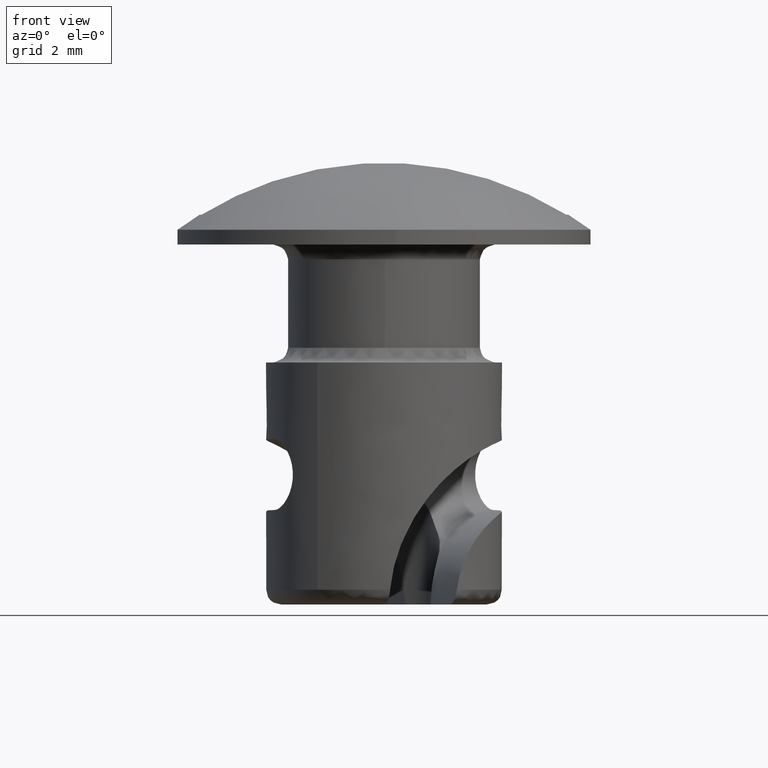
[diagram: clean part render]
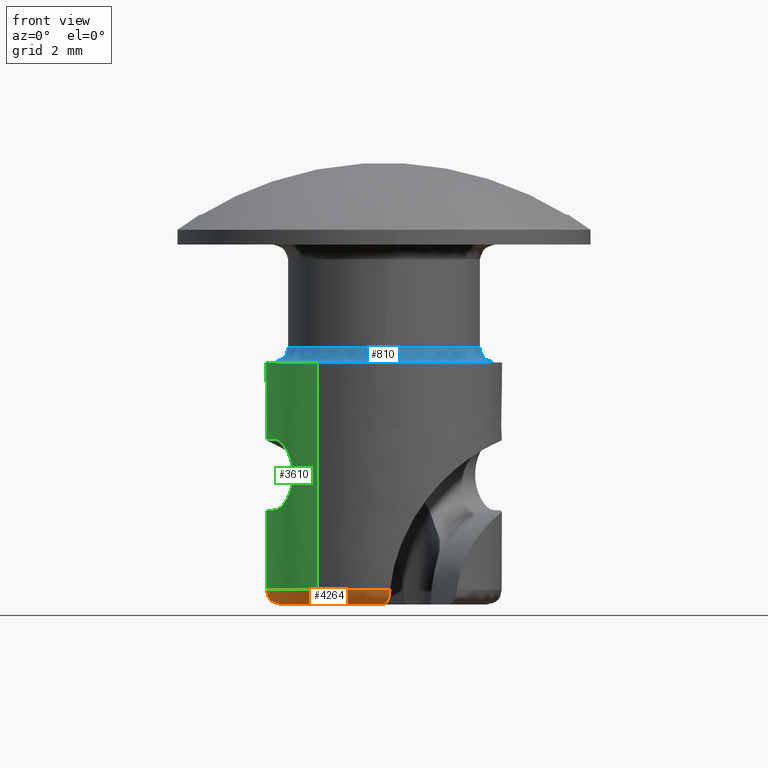
[diagram: same view with three faces highlighted in distinct colors, each labeled with its STEP entity id]
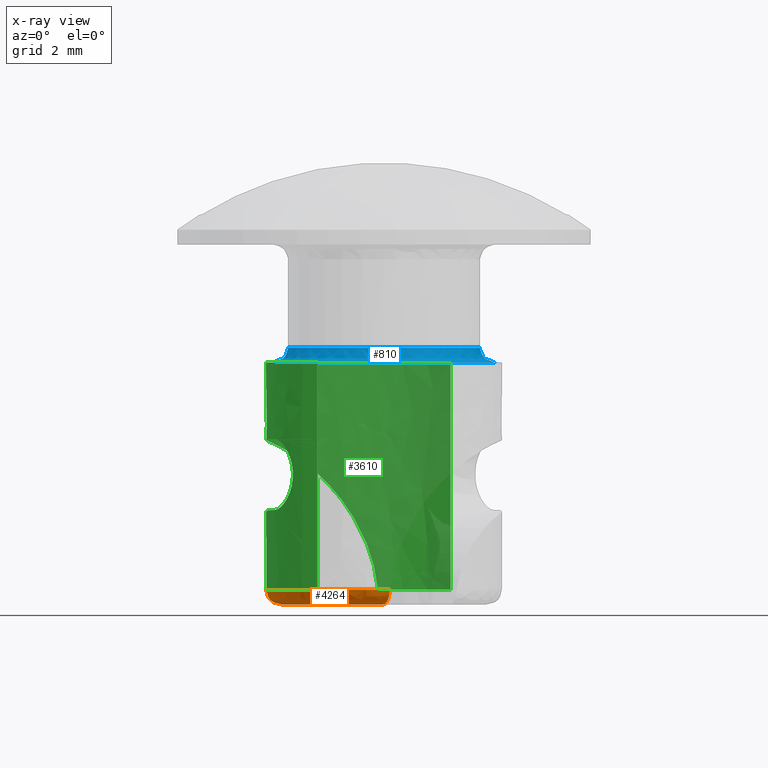
[diagram: x-ray of the same camera — body ghosted, the three highlighted faces saturated]
A machine part, front view with three faces highlighted in distinct colors.
The next image is the same camera in x-ray (body ghosted, the three faces saturated) — at least one of them is partly hidden behind the body in this view.
Their STEP definitions:

[orange] entity #4264 — the highlighted face is a freeform B-spline surface patch.
#3431=CARTESIAN_POINT('',(-2.259198889442652,-3.300912052439610,-11.699992000000160));
#3432=VERTEX_POINT('',#3431);
#3438=CARTESIAN_POINT('',(0.205768854712658,-3.994703891207740,-11.699992000000160));
#3439=VERTEX_POINT('',#3438);
#3440=CARTESIAN_POINT('',(-2.259198889442653,-3.300912052439611,-11.699992000000162));
#3441=CARTESIAN_POINT('',(-1.143920645850058,-4.064226957325293,-11.699992000000162));
#3442=CARTESIAN_POINT('',(0.205768854712658,-3.994703891207737,-11.699992000000160));
#3450=(BOUNDED_CURVE()B_SPLINE_CURVE(2,(#3440,#3441,#3442),.UNSPECIFIED.,.F.,.U.)B_SPLINE_CURVE_WITH_KNOTS((3,3),(0.742473770194558,1.0),.UNSPECIFIED.)CURVE()GEOMETRIC_REPRESENTATION_ITEM()RATIONAL_B_SPLINE_CURVE((0.903519857702811,0.900525176166710,1.0))REPRESENTATION_ITEM(''));
#3451=EDGE_CURVE('',#3432,#3439,#3450,.T.);
#3547=CARTESIAN_POINT('',(-2.468781606039290,3.147239644781135,-11.699992000000160));
#3548=VERTEX_POINT('',#3547);
#3592=CARTESIAN_POINT('',(-2.468781606039288,3.147239644781133,-11.699992000000160));
#3593=CARTESIAN_POINT('',(-4.772995447202776,1.339750737198706,-11.699992000000158));
#3594=CARTESIAN_POINT('',(-3.745950619800004,-1.402802179218427,-11.699992000000160));
#3595=CARTESIAN_POINT('',(-3.302552389255950,-2.586823633654807,-11.699992000000162));
#3596=CARTESIAN_POINT('',(-2.259198889442653,-3.300912052439611,-11.699992000000162));
#3604=(BOUNDED_CURVE()B_SPLINE_CURVE(2,(#3592,#3593,#3594,#3595,#3596),.UNSPECIFIED.,.F.,.U.)B_SPLINE_CURVE_WITH_KNOTS((3,2,3),(0.0,0.500000000000000,0.742473770194558),.UNSPECIFIED.)CURVE()GEOMETRIC_REPRESENTATION_ITEM()RATIONAL_B_SPLINE_CURVE((1.0,0.806864675671208,1.0,0.906339499504498,0.903519857702811))REPRESENTATION_ITEM(''));
#3605=EDGE_CURVE('',#3548,#3432,#3604,.T.);
#4123=CARTESIAN_POINT('',(-2.242511966324965,2.687217907221375,-12.199992000000099));
#4124=VERTEX_POINT('',#4123);
#4130=CARTESIAN_POINT('',(-2.468781606039290,3.147239644781135,-11.699992000000160));
#4131=CARTESIAN_POINT('',(-2.464572320773228,3.150541524273109,-11.733274123550190));
#4132=CARTESIAN_POINT('',(-2.459563125066526,3.150276408604841,-11.766187591314260));
#4133=CARTESIAN_POINT('',(-2.447905572098373,3.142738857981297,-11.831278994734751));
#4134=CARTESIAN_POINT('',(-2.441164767004551,3.135296757916409,-11.863783486413800));
#4135=CARTESIAN_POINT('',(-2.426427040251810,3.113930837520646,-11.925157461837310));
#4136=CARTESIAN_POINT('',(-2.418399638694786,3.100049556877730,-11.954308135837170));
#4137=CARTESIAN_POINT('',(-2.400786041455195,3.065982162877448,-12.009512428120050));
#4138=CARTESIAN_POINT('',(-2.391400104514497,3.046173255314443,-12.034889387884061));
#4139=CARTESIAN_POINT('',(-2.371574630902613,3.002094869464854,-12.080668314815309));
#4140=CARTESIAN_POINT('',(-2.360969432059830,2.977440976156993,-12.101381239037501));
#4141=CARTESIAN_POINT('',(-2.339057009752660,2.925254256444605,-12.136821845581650));
#4142=CARTESIAN_POINT('',(-2.327740431831670,2.897720641032076,-12.151663792608220));
#4143=CARTESIAN_POINT('',(-2.304196367126952,2.839942682373601,-12.175755940135289));
#4144=CARTESIAN_POINT('',(-2.292001899115876,2.809776261967374,-12.184892974169580));
#4145=CARTESIAN_POINT('',(-2.267516184016631,2.749146349777264,-12.196946027397439));
#4146=CARTESIAN_POINT('',(-2.255109725855921,2.718398469727004,-12.199992000000149));
#4147=CARTESIAN_POINT('',(-2.242511966324608,2.687217907221529,-12.199992000000160));
#4148=B_SPLINE_CURVE_WITH_KNOTS('',3,(#4130,#4131,#4132,#4133,#4134,#4135,#4136,#4137,#4138,#4139,#4140,#4141,#4142,#4143,#4144,#4145,#4146,#4147),.UNSPECIFIED.,.F.,.U.,(4,2,2,2,2,2,2,2,4),(0.0,0.125000000000000,0.250000000000000,0.375000000000000,0.500000000000000,0.625000000000000,0.750000000000000,0.875000000000000,1.0),.UNSPECIFIED.);
#4149=EDGE_CURVE('',#3548,#4124,#4148,.T.);
#4178=CARTESIAN_POINT('',(-0.017604006614064,-3.499955728141590,-12.199992000000099));
#4179=VERTEX_POINT('',#4178);
#4180=CARTESIAN_POINT('',(0.205768854712687,-3.994703891207736,-11.699992000000160));
#4181=CARTESIAN_POINT('',(0.202570867799463,-3.994868620840380,-11.734214420369421));
#4182=CARTESIAN_POINT('',(0.198393545772965,-3.991599343327962,-11.767742906660960));
#4183=CARTESIAN_POINT('',(0.188146193195389,-3.978574490013461,-11.833482946978870));
#4184=CARTESIAN_POINT('',(0.181987101593155,-3.968640287744275,-11.866043282467770));
#4185=CARTESIAN_POINT('',(0.168073989641811,-3.942908178400839,-11.927523380525161));
#4186=CARTESIAN_POINT('',(0.160334601070042,-3.927184040059273,-11.956536318944631));
#4187=CARTESIAN_POINT('',(0.147461496767844,-3.899415845364494,-11.997497215102010));
#4188=CARTESIAN_POINT('',(0.142933257884455,-3.889400476937641,-12.010782385685040));
#4189=CARTESIAN_POINT('',(0.133598651144906,-3.868340091526421,-12.035992227197690));
#4190=CARTESIAN_POINT('',(0.128782856804895,-3.857277266277471,-12.047958802780981));
#4191=CARTESIAN_POINT('',(0.113874842880179,-3.822554900096510,-12.082005095103829));
#4192=CARTESIAN_POINT('',(0.103303531045872,-3.797320421873493,-12.102282336880119));
#4193=CARTESIAN_POINT('',(0.080860798330045,-3.743011684126071,-12.137705294688450));
#4194=CARTESIAN_POINT('',(0.069289267673411,-3.714668037223075,-12.152391193458779));
#4195=CARTESIAN_POINT('',(0.045370677399293,-3.655796365253236,-12.176083282238160));
#4196=CARTESIAN_POINT('',(0.032901293881655,-3.624963587258385,-12.185131230430841));
#4197=CARTESIAN_POINT('',(0.007754761183584,-3.562736604437253,-12.197057158079900));
#4198=CARTESIAN_POINT('',(-0.004885637460380,-3.531434810067574,-12.199992000000240));
#4199=CARTESIAN_POINT('',(-0.017604006614226,-3.499955728141666,-12.199992000000240));
#4200=B_SPLINE_CURVE_WITH_KNOTS('',3,(#4180,#4181,#4182,#4183,#4184,#4185,#4186,#4187,#4188,#4189,#4190,#4191,#4192,#4193,#4194,#4195,#4196,#4197,#4198,#4199),.UNSPECIFIED.,.F.,.U.,(4,2,2,2,2,2,2,2,2,4),(0.0,0.124999999999997,0.249999999999995,0.374999999999992,0.437499999999991,0.499999999999989,0.624999999999992,0.749999999999995,0.874999999999997,1.0),.UNSPECIFIED.);
#4201=EDGE_CURVE('',#3439,#4179,#4200,.T.);
#4211=CARTESIAN_POINT('',(-1.787606860105116,2.968550239677458,-12.198781681150102));
#4212=CARTESIAN_POINT('',(-4.254964950566883,1.482752158886159,-12.198781681150100));
#4213=CARTESIAN_POINT('',(-3.245362096339542,-1.214682541006732,-12.198781681150102));
#4214=CARTESIAN_POINT('',(-2.238848449856915,-3.903863563593863,-12.198781681150100));
#4215=CARTESIAN_POINT('',(0.590520932782384,-3.414544455667517,-12.198781681150109));
#4216=CARTESIAN_POINT('',(-2.083477131882358,3.459880736219698,-12.238760598006138));
#4217=CARTESIAN_POINT('',(-4.959212436086616,1.728165338941946,-12.238760598006142));
#4218=CARTESIAN_POINT('',(-3.782508259116673,-1.415726999691343,-12.238760598006142));
#4219=CARTESIAN_POINT('',(-2.609404590645201,-4.549999578910936,-12.238760598006145));
#4220=CARTESIAN_POINT('',(0.688259195468510,-3.979692318231892,-12.238760598006142));
#4221=CARTESIAN_POINT('',(-2.062853240148691,3.425632121428938,-11.665223436331644));
#4222=CARTESIAN_POINT('',(-4.910122259477047,1.711058602178287,-11.665223436331647));
#4223=CARTESIAN_POINT('',(-3.745066023910930,-1.401713022806613,-11.665223436331644));
#4224=CARTESIAN_POINT('',(-2.583574656184543,-4.504960112305940,-11.665223436331646));
#4225=CARTESIAN_POINT('',(0.681446265816040,-3.940298200461869,-11.665223436331649));
#4233=(BOUNDED_SURFACE()B_SPLINE_SURFACE(2,2,((#4211,#4216,#4221),(#4212,#4217,#4222),(#4213,#4218,#4223),(#4214,#4219,#4224),(#4215,#4220,#4225)),.UNSPECIFIED.,.F.,.F.,.U.)B_SPLINE_SURFACE_WITH_KNOTS((3,2,3),(3,3),(0.0,5.779221311498259,11.544998977205591),(0.0,0.911186994557406),.UNSPECIFIED.)GEOMETRIC_REPRESENTATION_ITEM()RATIONAL_B_SPLINE_SURFACE(((0.897021274250015,0.588647735791374,0.897021262953132),(0.698343812921621,0.458270629784030,0.698343804126838),(0.919258316275454,0.603240237457421,0.919258304698524),(0.698857705048794,0.458607858616594,0.698857696247539),(0.896099216278844,0.588042658350538,0.896099204993574)))REPRESENTATION_ITEM('')SURFACE());
#4234=ORIENTED_EDGE('',*,*,#3451,.F.);
#4235=ORIENTED_EDGE('',*,*,#3605,.F.);
#4236=ORIENTED_EDGE('',*,*,#4149,.T.);
#4237=CARTESIAN_POINT('',(-0.017604006614064,-3.499955728141590,-12.199992000000099));
#4238=CARTESIAN_POINT('',(-0.156661396966879,-3.499260045613418,-12.199992000000099));
#4239=CARTESIAN_POINT('',(-0.440256766137130,-3.480901755320178,-12.199992000000110));
#4240=CARTESIAN_POINT('',(-0.845540601444326,-3.404553613646068,-12.199992000000179));
#4241=CARTESIAN_POINT('',(-1.244319776905004,-3.279873678761871,-12.199992000000140));
#4242=CARTESIAN_POINT('',(-1.676909219436891,-3.086796382280007,-12.199992000000231));
#4243=CARTESIAN_POINT('',(-2.119411065114881,-2.804644087866794,-12.199992000000099));
#4244=CARTESIAN_POINT('',(-2.501946451816288,-2.462470550342502,-12.199992000000369));
#4245=CARTESIAN_POINT('',(-2.780788435833931,-2.136434844309680,-12.199992000000000));
#4246=CARTESIAN_POINT('',(-3.023042282671148,-1.782562962652433,-12.199992000000400));
#4247=CARTESIAN_POINT('',(-3.224176240781139,-1.390428110235321,-12.199991999999970));
#4248=CARTESIAN_POINT('',(-3.376540124789555,-0.953670135058973,-12.199992000000201));
#4249=CARTESIAN_POINT('',(-3.477178462789413,-0.490837271421337,-12.199991999999940));
#4250=CARTESIAN_POINT('',(-3.510752783042816,-0.034448152891564,-12.199992000000920));
#4251=CARTESIAN_POINT('',(-3.477383437117761,0.499316412911414,-12.199991999999250));
#4252=CARTESIAN_POINT('',(-3.372458837554510,0.991034242136843,-12.199992000000440));
#4253=CARTESIAN_POINT('',(-3.203101216840307,1.427633091730290,-12.199992000000289));
#4254=CARTESIAN_POINT('',(-3.026655615721814,1.768837369115750,-12.199992000000110));
#4255=CARTESIAN_POINT('',(-2.747916640500233,2.199012333348569,-12.199992000000270));
#4256=CARTESIAN_POINT('',(-2.460373829471727,2.505510282566550,-12.199992000000201));
#4257=CARTESIAN_POINT('',(-2.242511966324965,2.687217907221375,-12.199992000000099));
#4258=B_SPLINE_CURVE_WITH_KNOTS('',3,(#4237,#4238,#4239,#4240,#4241,#4242,#4243,#4244,#4245,#4246,#4247,#4248,#4249,#4250,#4251,#4252,#4253,#4254,#4255,#4256,#4257),.UNSPECIFIED.,.F.,.U.,(4,1,1,1,1,1,1,1,1,1,1,1,1,1,1,1,1,1,4),(0.000000017907864,0.417177454176553,0.851055014053666,1.234865718255871,1.668742696379826,2.269490795805809,2.803490818404716,3.203992031990927,3.554424843338834,4.088427645423057,4.522284674150830,4.939474574679831,5.506847524780588,5.890660003630121,6.541472629562640,7.008723303767864,7.292410788534060,7.692911370398746,8.543963902825446),.UNSPECIFIED.);
#4259=EDGE_CURVE('',#4179,#4124,#4258,.T.);
#4260=ORIENTED_EDGE('',*,*,#4259,.F.);
#4261=ORIENTED_EDGE('',*,*,#4201,.F.);
#4262=EDGE_LOOP('',(#4234,#4235,#4236,#4260,#4261));
#4263=FACE_OUTER_BOUND('',#4262,.T.);
#4264=ADVANCED_FACE('',(#4263),#4233,.T.);

[blue] entity #810 — the highlighted face is a freeform B-spline surface patch.
#576=CARTESIAN_POINT('',(-3.249743393662270,0.040839629631426,-3.499992000029682));
#577=VERTEX_POINT('',#576);
#591=CARTESIAN_POINT('',(-3.250000000000000,0.0,-3.499992000000175));
#592=VERTEX_POINT('',#591);
#593=CARTESIAN_POINT('',(-3.249743393662269,0.040839629631426,-3.499992000029682));
#594=CARTESIAN_POINT('',(-3.250000000000000,0.020420620978907,-3.499992000014929));
#595=CARTESIAN_POINT('',(-3.250000000000000,0.0,-3.499992000000175));
#603=(BOUNDED_CURVE()B_SPLINE_CURVE(2,(#593,#594,#595),.UNSPECIFIED.,.F.,.U.)B_SPLINE_CURVE_WITH_KNOTS((3,3),(0.497784295921158,0.500000000000000),.UNSPECIFIED.)CURVE()GEOMETRIC_REPRESENTATION_ITEM()RATIONAL_B_SPLINE_CURVE((0.994854295642701,0.997404141201640,1.0))REPRESENTATION_ITEM(''));
#604=EDGE_CURVE('',#577,#592,#603,.T.);
#606=CARTESIAN_POINT('',(0.028359794209336,-3.249876262578363,-3.499992000015144));
#607=VERTEX_POINT('',#606);
#608=CARTESIAN_POINT('',(-3.250000000000000,0.0,-3.499992000000175));
#609=CARTESIAN_POINT('',(-3.250000000000001,-3.249999999999842,-3.499992000000265));
#610=CARTESIAN_POINT('',(-2.578229E-015,-3.249999999999679,-3.499992000015015));
#611=CARTESIAN_POINT('',(0.014180167045790,-3.249999999999678,-3.499992000015080));
#612=CARTESIAN_POINT('',(0.028359794209336,-3.249876262578364,-3.499992000015144));
#620=(BOUNDED_CURVE()B_SPLINE_CURVE(2,(#608,#609,#610,#611,#612),.UNSPECIFIED.,.F.,.U.)B_SPLINE_CURVE_WITH_KNOTS((3,2,3),(0.500000000000000,0.750000000000000,0.751539815953316),.UNSPECIFIED.)CURVE()GEOMETRIC_REPRESENTATION_ITEM()RATIONAL_B_SPLINE_CURVE((1.0,0.707106781186547,1.0,0.998195993396212,0.996414209497610))REPRESENTATION_ITEM(''));
#621=EDGE_CURVE('',#592,#607,#620,.T.);
#677=CARTESIAN_POINT('',(3.249743393662270,-0.040839629631425,-3.499992000029681));
#678=VERTEX_POINT('',#677);
#679=CARTESIAN_POINT('',(0.028359794209336,-3.249876262578364,-3.499992000015144));
#680=CARTESIAN_POINT('',(3.209764216664997,-3.222113982593769,-3.499992000029588));
#681=CARTESIAN_POINT('',(3.249743393662269,-0.040839629631425,-3.499992000029681));
#689=(BOUNDED_CURVE()B_SPLINE_CURVE(2,(#679,#680,#681),.UNSPECIFIED.,.F.,.U.)B_SPLINE_CURVE_WITH_KNOTS((3,3),(0.751539815953316,0.997784295921158),.UNSPECIFIED.)CURVE()GEOMETRIC_REPRESENTATION_ITEM()RATIONAL_B_SPLINE_CURVE((0.996414209497610,0.711474669430374,0.994854295642701))REPRESENTATION_ITEM(''));
#690=EDGE_CURVE('',#607,#678,#689,.T.);
#708=CARTESIAN_POINT('',(-3.250953615354651,0.040854838515779,-3.465223445443551));
#709=CARTESIAN_POINT('',(-3.291808453870429,-3.210098776838871,-3.465223445443552));
#710=CARTESIAN_POINT('',(-0.040854838515780,-3.250953615354651,-3.465223445443551));
#711=CARTESIAN_POINT('',(3.210098776838871,-3.291808453870432,-3.465223445443552));
#712=CARTESIAN_POINT('',(3.250953615354651,-0.040854838515780,-3.465223445443551));
#713=CARTESIAN_POINT('',(-3.210977882847664,0.040352462201208,-4.038760587009053));
#714=CARTESIAN_POINT('',(-3.251330345048872,-3.170625420646454,-4.038760587009052));
#715=CARTESIAN_POINT('',(-0.040352462201209,-3.210977882847664,-4.038760587009053));
#716=CARTESIAN_POINT('',(3.170625420646454,-3.251330345048872,-4.038760587009052));
#717=CARTESIAN_POINT('',(3.210977882847664,-0.040352462201209,-4.038760587009053));
#718=CARTESIAN_POINT('',(-3.784469739204387,0.047559552782540,-3.998781681766057));
#719=CARTESIAN_POINT('',(-3.832029291986928,-3.736910186421846,-3.998781681766058));
#720=CARTESIAN_POINT('',(-0.047559552782540,-3.784469739204387,-3.998781681766057));
#721=CARTESIAN_POINT('',(3.736910186421846,-3.832029291986928,-3.998781681766058));
#722=CARTESIAN_POINT('',(3.784469739204387,-0.047559552782541,-3.998781681766057));
#730=(BOUNDED_SURFACE()B_SPLINE_SURFACE(2,2,((#708,#713,#718),(#709,#714,#719),(#710,#715,#720),(#711,#716,#721),(#712,#717,#722)),.UNSPECIFIED.,.F.,.F.,.U.)B_SPLINE_SURFACE_WITH_KNOTS((3,2,3),(3,3),(0.0,6.270809886263397,12.541619772526790),(0.0,0.911186972831271),.UNSPECIFIED.)GEOMETRIC_REPRESENTATION_ITEM()RATIONAL_B_SPLINE_SURFACE(((0.910479795090997,0.597479572841838,0.910479806786608),(0.643806437242182,0.422481857576905,0.643806445512228),(0.910479795090997,0.597479572841838,0.910479806786608),(0.643806437242182,0.422481857576905,0.643806445512228),(0.910479795090997,0.597479572841838,0.910479806786608)))REPRESENTATION_ITEM('')SURFACE());
#731=CARTESIAN_POINT('',(-3.750000000000000,0.0,-3.999992000000205));
#732=VERTEX_POINT('',#731);
#733=CARTESIAN_POINT('',(-3.749703915248357,0.047122649624261,-3.999992000000190));
#734=VERTEX_POINT('',#733);
#735=CARTESIAN_POINT('',(-3.750000000000000,0.0,-3.999992000000205));
#736=CARTESIAN_POINT('',(-3.749999999742452,0.023562255000435,-3.999992000000198));
#737=CARTESIAN_POINT('',(-3.749703915248356,0.047122649624261,-3.999992000000190));
#745=(BOUNDED_CURVE()B_SPLINE_CURVE(2,(#735,#736,#737),.UNSPECIFIED.,.F.,.U.)B_SPLINE_CURVE_WITH_KNOTS((3,3),(0.500000000000000,0.502215704081469),.UNSPECIFIED.)CURVE()GEOMETRIC_REPRESENTATION_ITEM()RATIONAL_B_SPLINE_CURVE((1.0,0.997404141198562,0.994854295636654))REPRESENTATION_ITEM(''));
#746=EDGE_CURVE('',#732,#734,#745,.T.);
#747=ORIENTED_EDGE('',*,*,#746,.F.);
#748=CARTESIAN_POINT('',(3.749703915248357,-0.047122649624261,-3.999992000000175));
#749=VERTEX_POINT('',#748);
#750=CARTESIAN_POINT('',(3.749703915248357,-0.047122649624261,-3.999992000000175));
#751=CARTESIAN_POINT('',(3.747692243962044,-0.207532549941390,-3.999992000000179));
#752=CARTESIAN_POINT('',(3.721281962844098,-0.550991280395473,-3.999992000000171));
#753=CARTESIAN_POINT('',(3.604041005647385,-1.089889313004736,-3.999992000000218));
#754=CARTESIAN_POINT('',(3.387790867123681,-1.647304414464119,-3.999992000000125));
#755=CARTESIAN_POINT('',(3.079004083451685,-2.168218418047433,-3.999992000000293));
#756=CARTESIAN_POINT('',(2.686972144175171,-2.639376201425642,-3.999992000000025));
#757=CARTESIAN_POINT('',(2.270080389028266,-3.001246220213727,-3.999992000000301));
#758=CARTESIAN_POINT('',(1.864525800322066,-3.261882883429304,-3.999992000000127));
#759=CARTESIAN_POINT('',(1.481558131621359,-3.453678741363479,-3.999992000000203));
#760=CARTESIAN_POINT('',(1.086241139929066,-3.598535615152493,-3.999992000000195));
#761=CARTESIAN_POINT('',(0.684168899137651,-3.693545747917341,-3.999992000000207));
#762=CARTESIAN_POINT('',(0.259608568193752,-3.749586295492530,-3.999992000000203));
#763=CARTESIAN_POINT('',(-0.176848918702472,-3.756178202687441,-3.999992000000207));
#764=CARTESIAN_POINT('',(-0.693856039809802,-3.697387748418087,-3.999992000000205));
#765=CARTESIAN_POINT('',(-1.265493653762731,-3.551005272313260,-3.999992000000206));
#766=CARTESIAN_POINT('',(-1.824175047538319,-3.296150164202622,-3.999992000000204));
#767=CARTESIAN_POINT('',(-2.294022207715006,-2.979502800560073,-3.999992000000205));
#768=CARTESIAN_POINT('',(-2.621613442748406,-2.691411142214324,-3.999992000000202));
#769=CARTESIAN_POINT('',(-2.962906422298065,-2.319568754656141,-3.999992000000210));
#770=CARTESIAN_POINT('',(-3.249687033661092,-1.902138058682559,-3.999992000000201));
#771=CARTESIAN_POINT('',(-3.497348873247582,-1.384294001408534,-3.999992000000203));
#772=CARTESIAN_POINT('',(-3.645334319453397,-0.924980011380784,-3.999992000000205));
#773=CARTESIAN_POINT('',(-3.731766310221203,-0.450708986480115,-3.999992000000203));
#774=CARTESIAN_POINT('',(-3.750004755178723,-0.152783584593169,-3.999992000000207));
#775=CARTESIAN_POINT('',(-3.750000000000000,0.0,-3.999992000000205));
#776=B_SPLINE_CURVE_WITH_KNOTS('',3,(#750,#751,#752,#753,#754,#755,#756,#757,#758,#759,#760,#761,#762,#763,#764,#765,#766,#767,#768,#769,#770,#771,#772,#773,#774,#775),.UNSPECIFIED.,.F.,.U.,(4,1,1,1,1,1,1,1,1,1,1,1,1,1,1,1,1,1,1,1,1,1,1,4),(0.000000021437945,0.481268429929072,1.031292887368121,1.650072485586046,2.268853387291683,2.841796062553922,3.483492875315552,3.918933511557905,4.285612166466626,4.766891789918317,5.179403761802127,5.523175956074534,6.050271183722716,6.485701721799428,7.081564013445127,7.814937288409130,8.319126123765287,8.777482577953810,9.121249274211788,9.831702170875873,10.290054036674920,10.840085076701831,11.275515986907619,11.733866820730469),.UNSPECIFIED.);
#777=EDGE_CURVE('',#749,#732,#776,.T.);
#778=ORIENTED_EDGE('',*,*,#777,.F.);
#779=CARTESIAN_POINT('',(3.249743393662269,-0.040839629631425,-3.499992000029681));
#780=CARTESIAN_POINT('',(3.249743393691411,-0.040839629660613,-3.999991999485038));
#781=CARTESIAN_POINT('',(3.749703915248358,-0.047122649624261,-3.999992000000175));
#789=(BOUNDED_CURVE()B_SPLINE_CURVE(2,(#779,#780,#781),.UNSPECIFIED.,.F.,.U.)B_SPLINE_CURVE_WITH_KNOTS((3,3),(-1.725134643221297,-0.274865357774724),.UNSPECIFIED.)CURVE()GEOMETRIC_REPRESENTATION_ITEM()RATIONAL_B_SPLINE_CURVE((0.883342149631467,0.624617224326861,0.883342149276091))REPRESENTATION_ITEM(''));
#790=EDGE_CURVE('',#678,#749,#789,.T.);
#791=ORIENTED_EDGE('',*,*,#790,.F.);
#792=ORIENTED_EDGE('',*,*,#690,.F.);
#793=ORIENTED_EDGE('',*,*,#621,.F.);
#794=ORIENTED_EDGE('',*,*,#604,.F.);
#795=CARTESIAN_POINT('',(-3.249743393662270,0.040839629631426,-3.499992000029682));
#796=CARTESIAN_POINT('',(-3.249743393691412,0.040839629660613,-3.999991999485046));
#797=CARTESIAN_POINT('',(-3.749703915248357,0.047122649624261,-3.999992000000190));
#805=(BOUNDED_CURVE()B_SPLINE_CURVE(2,(#795,#796,#797),.UNSPECIFIED.,.F.,.U.)B_SPLINE_CURVE_WITH_KNOTS((3,3),(-1.725134643221296,-0.274865357774725),.UNSPECIFIED.)CURVE()GEOMETRIC_REPRESENTATION_ITEM()RATIONAL_B_SPLINE_CURVE((0.883342149631467,0.624617224326861,0.883342149276091))REPRESENTATION_ITEM(''));
#806=EDGE_CURVE('',#577,#734,#805,.T.);
#807=ORIENTED_EDGE('',*,*,#806,.T.);
#808=EDGE_LOOP('',(#747,#778,#791,#792,#793,#794,#807));
#809=FACE_OUTER_BOUND('',#808,.T.);
#810=ADVANCED_FACE('',(#809),#730,.F.);

[green] entity #3610 — the highlighted face is a freeform B-spline surface patch.
#893=CARTESIAN_POINT('',(2.259197510015699,3.300912996541445,-3.999992000000230));
#894=VERTEX_POINT('',#893);
#908=CARTESIAN_POINT('',(-4.0,0.0,-3.999992000000230));
#909=VERTEX_POINT('',#908);
#910=CARTESIAN_POINT('',(2.259197510015699,3.300912996541445,-3.999992000000230));
#911=CARTESIAN_POINT('',(1.237761639447398,3.999999999999750,-3.999992000000230));
#912=CARTESIAN_POINT('',(-1.424406E-013,3.999999999999792,-3.999992000000229));
#913=CARTESIAN_POINT('',(-4.000000000000049,3.999999999999929,-3.999992000000229));
#914=CARTESIAN_POINT('',(-4.0,0.0,-3.999992000000230));
#922=(BOUNDED_CURVE()B_SPLINE_CURVE(2,(#910,#911,#912,#913,#914),.UNSPECIFIED.,.F.,.U.)B_SPLINE_CURVE_WITH_KNOTS((3,2,3),(0.153025893260789,0.250000000000000,0.500000000000000),.UNSPECIFIED.)CURVE()GEOMETRIC_REPRESENTATION_ITEM()RATIONAL_B_SPLINE_CURVE((0.860915092408029,0.886387766942373,1.0,0.707106781186548,1.0))REPRESENTATION_ITEM(''));
#923=EDGE_CURVE('',#894,#909,#922,.T.);
#925=CARTESIAN_POINT('',(-2.259197510500350,-3.300912996209743,-3.999992000000230));
#926=VERTEX_POINT('',#925);
#927=CARTESIAN_POINT('',(-4.0,0.0,-3.999992000000230));
#928=CARTESIAN_POINT('',(-3.999999999999907,-2.109480003257371,-3.999992000000230));
#929=CARTESIAN_POINT('',(-2.259197510500349,-3.300912996209743,-3.999992000000230));
#937=(BOUNDED_CURVE()B_SPLINE_CURVE(2,(#927,#928,#929),.UNSPECIFIED.,.F.,.U.)B_SPLINE_CURVE_WITH_KNOTS((3,3),(0.500000000000000,0.653025893238444),.UNSPECIFIED.)CURVE()GEOMETRIC_REPRESENTATION_ITEM()RATIONAL_B_SPLINE_CURVE((1.0,0.820719014270353,0.860915092396290))REPRESENTATION_ITEM(''));
#938=EDGE_CURVE('',#909,#926,#937,.T.);
#1165=CARTESIAN_POINT('',(-3.708735643717875,-1.498425815653404,-6.600000000000000));
#1166=VERTEX_POINT('',#1165);
#1591=CARTESIAN_POINT('',(-3.708735643717195,-1.498425815655100,-9.0));
#1592=VERTEX_POINT('',#1591);
#1813=CARTESIAN_POINT('',(-0.205768854712658,3.994703891207740,-11.699992000000160));
#1814=VERTEX_POINT('',#1813);
#1815=CARTESIAN_POINT('',(-3.708735643717875,-1.498425815653404,-6.600000000000000));
#1816=CARTESIAN_POINT('',(-3.789816242015302,-1.297744205807735,-6.599999999999972));
#1817=CARTESIAN_POINT('',(-3.853610974872032,-1.093263577412488,-6.600772875729547));
#1818=CARTESIAN_POINT('',(-3.948059474699817,-0.677029674079291,-6.604736595366663));
#1819=CARTESIAN_POINT('',(-3.978711172169415,-0.465275843627494,-6.607918917681143));
#1820=CARTESIAN_POINT('',(-3.995564957132693,-0.195894578718415,-6.615217662911021));
#1821=CARTESIAN_POINT('',(-3.997848564085063,-0.141795779559010,-6.616849857873357));
#1822=CARTESIAN_POINT('',(-4.000216753743071,-0.034133671513432,-6.620487619688186));
#1823=CARTESIAN_POINT('',(-4.000310720402404,0.019555583718766,-6.622496360478703));
#1824=CARTESIAN_POINT('',(-3.997374375231632,0.180197743397611,-6.629181404475866));
#1825=CARTESIAN_POINT('',(-3.991130562209951,0.286725832207316,-6.634513265878185));
#1826=CARTESIAN_POINT('',(-3.959775703180690,0.604579068728949,-6.653959452422089));
#1827=CARTESIAN_POINT('',(-3.922112906822729,0.814186815777882,-6.671451332132993));
#1828=CARTESIAN_POINT('',(-3.853761044358152,1.073029672022521,-6.702641931695323));
#1829=CARTESIAN_POINT('',(-3.838978122430331,1.124771750286358,-6.709371911327247));
#1830=CARTESIAN_POINT('',(-3.807509609817084,1.227083976707175,-6.723770845920252));
#1831=CARTESIAN_POINT('',(-3.757456182568842,1.378856449089958,-6.746776668644611));
#1832=CARTESIAN_POINT('',(-3.699122988859857,1.525589463259218,-6.774337358302793));
#1833=CARTESIAN_POINT('',(-3.571982284881070,1.812368324864488,-6.836501287930684));
#1834=CARTESIAN_POINT('',(-3.473289894623776,1.994666556306956,-6.887282724575035));
#1835=CARTESIAN_POINT('',(-3.333735905731934,2.211076038045203,-6.966273291350480));
#1836=CARTESIAN_POINT('',(-3.304936856167118,2.253889410775153,-6.982896306513404));
#1837=CARTESIAN_POINT('',(-3.246122206245276,2.337801471763046,-7.017586295371046));
#1838=CARTESIAN_POINT('',(-3.156252307149328,2.460874529570282,-7.071677189101810));
#1839=CARTESIAN_POINT('',(-3.061826482051081,2.575801728123305,-7.132117061349231));
#1840=CARTESIAN_POINT('',(-2.867818098297072,2.795310921927874,-7.261970828628705));
#1841=CARTESIAN_POINT('',(-2.731615405252651,2.927880516877459,-7.360484840940162));
#1842=CARTESIAN_POINT('',(-2.555468277276900,3.077615931860112,-7.500482646460062));
#1843=CARTESIAN_POINT('',(-2.519980797999551,3.106724907485755,-7.529300169703665));
#1844=CARTESIAN_POINT('',(-2.449137228549458,3.162873647304285,-7.588113109815472));
#1845=CARTESIAN_POINT('',(-2.342830668632972,3.244196303757055,-7.678286934049607));
#1846=CARTESIAN_POINT('',(-2.236691472767791,3.317262990057822,-7.774323978974890));
#1847=CARTESIAN_POINT('',(-2.095796109974274,3.408028925196530,-7.907615685544692));
#1848=CARTESIAN_POINT('',(-2.025659446669301,3.450082715466894,-7.976882592651817));
#1849=CARTESIAN_POINT('',(-1.921257087853518,3.508612679782934,-8.084763703480403));
#1850=CARTESIAN_POINT('',(-1.886589940101576,3.527363601466302,-8.121387812844379));
#1851=CARTESIAN_POINT('',(-1.817578161753506,3.563414823586853,-8.195975244005737));
#1852=CARTESIAN_POINT('',(-1.783169554541134,3.580745444036076,-8.234012034142026));
#1853=CARTESIAN_POINT('',(-1.613033766418871,3.663472067865985,-8.426479837185488));
#1854=CARTESIAN_POINT('',(-1.482986987825050,3.717243031302735,-8.587707480761205));
#1855=CARTESIAN_POINT('',(-1.236698357886628,3.806274206021904,-8.924298447189081));
#1856=CARTESIAN_POINT('',(-1.120446684108451,3.841502833200431,-9.099662647876054));
#1857=CARTESIAN_POINT('',(-0.957908198356718,3.884011853853578,-9.373477761067985));
#1858=CARTESIAN_POINT('',(-0.905705251657002,3.896450403323479,-9.466548770707387));
#1859=CARTESIAN_POINT('',(-0.805555123776748,3.918380876203309,-9.656374165562108));
#1860=CARTESIAN_POINT('',(-0.757944234396752,3.927799075888549,-9.752505848182304));
#1861=CARTESIAN_POINT('',(-0.623151315216673,3.952217429541131,-10.043543537596660));
#1862=CARTESIAN_POINT('',(-0.543759445167943,3.963466434363899,-10.241513917056279));
#1863=CARTESIAN_POINT('',(-0.407032704488645,3.979832268829340,-10.645542024260850));
#1864=CARTESIAN_POINT('',(-0.349696208037412,3.984944904570065,-10.851599389006870));
#1865=CARTESIAN_POINT('',(-0.281593372982556,3.990140787602110,-11.167123652098400));
#1866=CARTESIAN_POINT('',(-0.261884957381903,3.991451814718027,-11.273468557289331));
#1867=CARTESIAN_POINT('',(-0.229003439772380,3.993473268308075,-11.486270620101600));
#1868=CARTESIAN_POINT('',(-0.215769063158924,3.994188776321904,-11.592977385333411));
#1869=CARTESIAN_POINT('',(-0.205768854712658,3.994703891207740,-11.699992000000160));
#1870=B_SPLINE_CURVE_WITH_KNOTS('',3,(#1815,#1816,#1817,#1818,#1819,#1820,#1821,#1822,#1823,#1824,#1825,#1826,#1827,#1828,#1829,#1830,#1831,#1832,#1833,#1834,#1835,#1836,#1837,#1838,#1839,#1840,#1841,#1842,#1843,#1844,#1845,#1846,#1847,#1848,#1849,#1850,#1851,#1852,#1853,#1854,#1855,#1856,#1857,#1858,#1859,#1860,#1861,#1862,#1863,#1864,#1865,#1866,#1867,#1868,#1869),.UNSPECIFIED.,.F.,.U.,(4,2,2,2,2,2,2,2,1,2,2,2,1,2,2,2,1,2,2,2,2,2,2,2,2,2,2,2,4),(0.0,0.062500000000000,0.125000000000000,0.140625000000000,0.156250000000000,0.187500000000000,0.249999999999999,0.265624999999999,0.281249999999999,0.312499999999999,0.374999999999999,0.390624999999999,0.406249999999998,0.437499999999998,0.499999999999998,0.515624999999998,0.531249999999998,0.562499999999998,0.593749999999999,0.609374999999999,0.624999999999999,0.687499999999999,0.749999999999999,0.781249999999999,0.812499999999999,0.875000000000000,0.937500000000000,0.968750000000000,1.0),.UNSPECIFIED.);
#1871=EDGE_CURVE('',#1166,#1814,#1870,.T.);
#2610=CARTESIAN_POINT('',(-3.708735643717195,-1.498425815655100,-9.0));
#2611=CARTESIAN_POINT('',(-3.679102189223765,-1.571771221061442,-8.999999999995961));
#2612=CARTESIAN_POINT('',(-3.647627583659144,-1.643415829732495,-8.992253736317073));
#2613=CARTESIAN_POINT('',(-3.597846414992060,-1.748428385365271,-8.969119832469167));
#2614=CARTESIAN_POINT('',(-3.580727194656989,-1.783209866119957,-8.959406232334885));
#2615=CARTESIAN_POINT('',(-3.546194854705971,-1.850931311972835,-8.936325284477938));
#2616=CARTESIAN_POINT('',(-3.528822626520697,-1.883808763369812,-8.923008563218883));
#2617=CARTESIAN_POINT('',(-3.476529809504992,-1.979656240156730,-8.877894745435080));
#2618=CARTESIAN_POINT('',(-3.441422436012595,-2.039862738677055,-8.840986417194552));
#2619=CARTESIAN_POINT('',(-3.371664358349678,-2.153208728938019,-8.753100008384973));
#2620=CARTESIAN_POINT('',(-3.338125821954170,-2.204560077148392,-8.703511626598464));
#2621=CARTESIAN_POINT('',(-3.290603741679166,-2.274361294848796,-8.620984216887338));
#2622=CARTESIAN_POINT('',(-3.275228753205647,-2.296417054312440,-8.592104484314875));
#2623=CARTESIAN_POINT('',(-3.245583210042873,-2.338128375401098,-8.531520028104186));
#2624=CARTESIAN_POINT('',(-3.231296064316655,-2.357802105201905,-8.499739655819589));
#2625=CARTESIAN_POINT('',(-3.191251705717659,-2.412039104348096,-8.402138996591738));
#2626=CARTESIAN_POINT('',(-3.167959553486398,-2.442337980794399,-8.333461515882405));
#2627=CARTESIAN_POINT('',(-3.138960841511833,-2.479348799936591,-8.224909215741581));
#2628=CARTESIAN_POINT('',(-3.130265571418595,-2.490297795865223,-8.187673365036485));
#2629=CARTESIAN_POINT('',(-3.115181070894091,-2.509141796561334,-8.111777814586324));
#2630=CARTESIAN_POINT('',(-3.108860624840466,-2.516952641354834,-8.073503060591065));
#2631=CARTESIAN_POINT('',(-3.093605507198244,-2.535717827287518,-7.957714580034457));
#2632=CARTESIAN_POINT('',(-3.088355791737046,-2.542057927207389,-7.879216207163272));
#2633=CARTESIAN_POINT('',(-3.088405530332514,-2.541997498397624,-7.719660757297714));
#2634=CARTESIAN_POINT('',(-3.093699749007584,-2.535602924972347,-7.641314035072517));
#2635=CARTESIAN_POINT('',(-3.108965736497677,-2.516822824896144,-7.525829093263253));
#2636=CARTESIAN_POINT('',(-3.115280585311294,-2.509018098867551,-7.487675685665274));
#2637=CARTESIAN_POINT('',(-3.130327457372089,-2.490219860833317,-7.412061565552940));
#2638=CARTESIAN_POINT('',(-3.139073773109753,-2.479206167438240,-7.374621247898361));
#2639=CARTESIAN_POINT('',(-3.168172651768619,-2.442062968665952,-7.265835438195641));
#2640=CARTESIAN_POINT('',(-3.191522263812012,-2.411681838382059,-7.197115238746825));
#2641=CARTESIAN_POINT('',(-3.231595270381205,-2.357392186517236,-7.099574956171020));
#2642=CARTESIAN_POINT('',(-3.245882471444463,-2.337713219615246,-7.067832932309812));
#2643=CARTESIAN_POINT('',(-3.275555016134975,-2.295951970722411,-7.007264972069876));
#2644=CARTESIAN_POINT('',(-3.290938502689930,-2.273877015792639,-6.978403733941680));
#2645=CARTESIAN_POINT('',(-3.338468913277980,-2.204041052343009,-6.895954947146952));
#2646=CARTESIAN_POINT('',(-3.371982996198902,-2.152707910233018,-6.846458983159987));
#2647=CARTESIAN_POINT('',(-3.441665216082183,-2.039451204080858,-6.758747595275210));
#2648=CARTESIAN_POINT('',(-3.476827485148712,-1.979127252197910,-6.721821598279782));
#2649=CARTESIAN_POINT('',(-3.528989714817065,-1.883494120839451,-6.676860832880259));
#2650=CARTESIAN_POINT('',(-3.546302402599304,-1.850721884976318,-6.663600701630448));
#2651=CARTESIAN_POINT('',(-3.580684502784270,-1.783292101064659,-6.640624436650118));
#2652=CARTESIAN_POINT('',(-3.597844094765266,-1.748435731230899,-6.630878000812712));
#2653=CARTESIAN_POINT('',(-3.647771333689998,-1.643107678416087,-6.607685964771420));
#2654=CARTESIAN_POINT('',(-3.679217924304725,-1.571484766568679,-6.599999999993235));
#2655=CARTESIAN_POINT('',(-3.708735643717875,-1.498425815653404,-6.600000000000000));
#2656=B_SPLINE_CURVE_WITH_KNOTS('',3,(#2610,#2611,#2612,#2613,#2614,#2615,#2616,#2617,#2618,#2619,#2620,#2621,#2622,#2623,#2624,#2625,#2626,#2627,#2628,#2629,#2630,#2631,#2632,#2633,#2634,#2635,#2636,#2637,#2638,#2639,#2640,#2641,#2642,#2643,#2644,#2645,#2646,#2647,#2648,#2649,#2650,#2651,#2652,#2653,#2654,#2655),.UNSPECIFIED.,.F.,.U.,(4,2,2,2,2,2,2,2,2,2,2,2,2,2,2,2,2,2,2,2,2,2,4),(0.0,0.062500000000002,0.093750000000003,0.125000000000004,0.187500000000006,0.250000000000009,0.281250000000009,0.312500000000010,0.375000000000011,0.406250000000011,0.437500000000011,0.500000000000010,0.562500000000008,0.593750000000007,0.625000000000007,0.687500000000006,0.718750000000006,0.750000000000006,0.812500000000004,0.875000000000003,0.906250000000002,0.937500000000002,1.0),.UNSPECIFIED.);
#2657=EDGE_CURVE('',#1592,#1166,#2656,.T.);
#3117=CARTESIAN_POINT('',(2.259198873092861,3.300912063629678,-11.699992000000149));
#3118=VERTEX_POINT('',#3117);
#3119=CARTESIAN_POINT('',(2.259198873092861,3.300912063629680,-11.699992000000162));
#3120=CARTESIAN_POINT('',(1.143920634827590,4.064226956757519,-11.699992000000156));
#3121=CARTESIAN_POINT('',(-0.205768854712657,3.994703891207737,-11.699992000000160));
#3129=(BOUNDED_CURVE()B_SPLINE_CURVE(2,(#3119,#3120,#3121),.UNSPECIFIED.,.F.,.U.)B_SPLINE_CURVE_WITH_KNOTS((3,3),(0.742473772088481,1.0),.UNSPECIFIED.)CURVE()GEOMETRIC_REPRESENTATION_ITEM()RATIONAL_B_SPLINE_CURVE((0.903519857658763,0.900525176898276,1.0))REPRESENTATION_ITEM(''));
#3130=EDGE_CURVE('',#3118,#1814,#3129,.T.);
#3431=CARTESIAN_POINT('',(-2.259198889442652,-3.300912052439610,-11.699992000000160));
#3432=VERTEX_POINT('',#3431);
#3433=CARTESIAN_POINT('',(-2.259198889442652,-3.300912052439610,-11.699992000000160));
#3434=CARTESIAN_POINT('',(-2.259197510500350,-3.300912996209743,-3.999992000000230));
#3435=QUASI_UNIFORM_CURVE('',1,(#3433,#3434),.UNSPECIFIED.,.F.,.U.);
#3436=EDGE_CURVE('',#3432,#926,#3435,.T.);
#3514=CARTESIAN_POINT('',(2.259198873092861,3.300912063629678,-11.699992000000149));
#3515=CARTESIAN_POINT('',(2.259197510015699,3.300912996541445,-3.999992000000230));
#3516=QUASI_UNIFORM_CURVE('',1,(#3514,#3515),.UNSPECIFIED.,.F.,.U.);
#3517=EDGE_CURVE('',#3118,#894,#3516,.T.);
#3523=CARTESIAN_POINT('',(2.259198850649106,3.300912078990555,-11.892492000000161));
#3524=CARTESIAN_POINT('',(-1.041713228341449,5.560110929639662,-11.892492000000159));
#3525=CARTESIAN_POINT('',(-3.300912078990555,2.259198850649106,-11.892492000000161));
#3526=CARTESIAN_POINT('',(-5.560110929639662,-1.041713228341449,-11.892492000000159));
#3527=CARTESIAN_POINT('',(-2.259198850649106,-3.300912078990555,-11.892492000000161));
#3528=CARTESIAN_POINT('',(2.259198850649106,3.300912078990555,-3.802679500000232));
#3529=CARTESIAN_POINT('',(-1.041713228341449,5.560110929639662,-3.802679500000232));
#3530=CARTESIAN_POINT('',(-3.300912078990555,2.259198850649106,-3.802679500000232));
#3531=CARTESIAN_POINT('',(-5.560110929639662,-1.041713228341449,-3.802679500000232));
#3532=CARTESIAN_POINT('',(-2.259198850649106,-3.300912078990555,-3.802679500000232));
#3540=(BOUNDED_SURFACE()B_SPLINE_SURFACE(2,1,((#3523,#3528),(#3524,#3529),(#3525,#3530),(#3526,#3531),(#3527,#3532)),.UNSPECIFIED.,.F.,.F.,.U.)B_SPLINE_SURFACE_WITH_KNOTS((3,2,3),(2,2),(0.0,6.627416997969519,13.254833995939039),(0.0,8.089812499999926),.UNSPECIFIED.)GEOMETRIC_REPRESENTATION_ITEM()RATIONAL_B_SPLINE_SURFACE(((1.0,1.0),(0.707106781186548,0.707106781186548),(1.0,1.0),(0.707106781186548,0.707106781186548),(1.0,1.0)))REPRESENTATION_ITEM('')SURFACE());
#3541=ORIENTED_EDGE('',*,*,#938,.F.);
#3542=ORIENTED_EDGE('',*,*,#923,.F.);
#3543=ORIENTED_EDGE('',*,*,#3517,.F.);
#3544=ORIENTED_EDGE('',*,*,#3130,.T.);
#3545=ORIENTED_EDGE('',*,*,#1871,.F.);
#3546=ORIENTED_EDGE('',*,*,#2657,.F.);
#3547=CARTESIAN_POINT('',(-2.468781606039290,3.147239644781135,-11.699992000000160));
#3548=VERTEX_POINT('',#3547);
#3549=CARTESIAN_POINT('',(-3.708735643717195,-1.498425815655100,-9.0));
#3550=CARTESIAN_POINT('',(-3.810090958870765,-1.247562498924028,-8.999999999999957));
#3551=CARTESIAN_POINT('',(-3.884534013940237,-0.990773260347814,-9.001989005608994));
#3552=CARTESIAN_POINT('',(-3.957431423748062,-0.597114365973022,-9.010854007396773));
#3553=CARTESIAN_POINT('',(-3.975219266481580,-0.464472409151724,-9.014852633452975));
#3554=CARTESIAN_POINT('',(-3.991888873922464,-0.263341844608410,-9.023411577499735));
#3555=CARTESIAN_POINT('',(-3.995774987931121,-0.195736937058386,-9.026708973333692));
#3556=CARTESIAN_POINT('',(-4.000098380150637,-0.061185388952168,-9.034313639172039));
#3557=CARTESIAN_POINT('',(-4.000552922773698,0.005834224472923,-9.038621180587285));
#3558=CARTESIAN_POINT('',(-3.994494771487650,0.339610273644315,-9.063199871098789));
#3559=CARTESIAN_POINT('',(-3.963160964590877,0.602465402867064,-9.092231149312392));
#3560=CARTESIAN_POINT('',(-3.892244392910707,0.924545387156605,-9.151712658925305));
#3561=CARTESIAN_POINT('',(-3.876463512499091,0.988632693985068,-9.164793391147132));
#3562=CARTESIAN_POINT('',(-3.841703696563871,1.116098864420390,-9.193729502408417));
#3563=CARTESIAN_POINT('',(-3.822759539488340,1.179300871714234,-9.209558206818848));
#3564=CARTESIAN_POINT('',(-3.762135803825186,1.365026873242740,-9.261026305331658));
#3565=CARTESIAN_POINT('',(-3.716439603513260,1.484531998927811,-9.300822789177580));
#3566=CARTESIAN_POINT('',(-3.616038741455114,1.714649352695212,-9.393747744094366));
#3567=CARTESIAN_POINT('',(-3.561327725681843,1.825262215269167,-9.446867744072126));
#3568=CARTESIAN_POINT('',(-3.473709976626775,1.984187070145873,-9.538682419504859));
#3569=CARTESIAN_POINT('',(-3.443778442466758,2.035621141561650,-9.571116458527442));
#3570=CARTESIAN_POINT('',(-3.383315620142920,2.134605070561868,-9.639214097439547));
#3571=CARTESIAN_POINT('',(-3.352704786899978,2.182299978619807,-9.674960163162739));
#3572=CARTESIAN_POINT('',(-3.260219866616394,2.320176019284351,-9.787463364765014));
#3573=CARTESIAN_POINT('',(-3.197691955991932,2.405156493261601,-9.869475532748558));
#3574=CARTESIAN_POINT('',(-3.104503275320074,2.522808418043423,-10.003835034144069));
#3575=CARTESIAN_POINT('',(-3.073540876573504,2.560387302447286,-10.050513885296370));
#3576=CARTESIAN_POINT('',(-3.012145538220095,2.632340387389567,-10.147830150644310));
#3577=CARTESIAN_POINT('',(-2.982023100929460,2.666350250954833,-10.197984765034009));
#3578=CARTESIAN_POINT('',(-2.894146360982904,2.762509471872189,-10.352250067694619));
#3579=CARTESIAN_POINT('',(-2.838713494502897,2.819012463386948,-10.460418501357660));
#3580=CARTESIAN_POINT('',(-2.761690907903717,2.893846008749095,-10.630600571960381));
#3581=CARTESIAN_POINT('',(-2.737037230131225,2.917130702887329,-10.688652361414199));
#3582=CARTESIAN_POINT('',(-2.690008017475727,2.960554205342071,-10.807433704027320));
#3583=CARTESIAN_POINT('',(-2.667561133932281,2.980754471376131,-10.868388787778670));
#3584=CARTESIAN_POINT('',(-2.604753430960601,3.036178198241648,-11.053081659258231));
#3585=CARTESIAN_POINT('',(-2.568768672016644,3.066416776179758,-11.178873449431300));
#3586=CARTESIAN_POINT('',(-2.509227545560922,3.115326862492772,-11.435575624183061));
#3587=CARTESIAN_POINT('',(-2.485666534758494,3.133994640858294,-11.566485656691439));
#3588=CARTESIAN_POINT('',(-2.468781606039290,3.147239644781135,-11.699992000000160));
#3589=B_SPLINE_CURVE_WITH_KNOTS('',3,(#3549,#3550,#3551,#3552,#3553,#3554,#3555,#3556,#3557,#3558,#3559,#3560,#3561,#3562,#3563,#3564,#3565,#3566,#3567,#3568,#3569,#3570,#3571,#3572,#3573,#3574,#3575,#3576,#3577,#3578,#3579,#3580,#3581,#3582,#3583,#3584,#3585,#3586,#3587,#3588),.UNSPECIFIED.,.F.,.U.,(4,2,2,2,2,2,2,2,2,2,2,2,2,2,2,2,2,2,2,4),(0.0,0.125000000000002,0.187500000000003,0.218750000000003,0.250000000000003,0.375000000000005,0.406250000000005,0.437500000000006,0.500000000000006,0.562500000000007,0.593750000000007,0.625000000000007,0.687500000000007,0.718750000000007,0.750000000000007,0.812500000000006,0.843750000000005,0.875000000000005,0.937500000000002,1.0),.UNSPECIFIED.);
#3590=EDGE_CURVE('',#1592,#3548,#3589,.T.);
#3591=ORIENTED_EDGE('',*,*,#3590,.T.);
#3592=CARTESIAN_POINT('',(-2.468781606039288,3.147239644781133,-11.699992000000160));
#3593=CARTESIAN_POINT('',(-4.772995447202776,1.339750737198706,-11.699992000000158));
#3594=CARTESIAN_POINT('',(-3.745950619800004,-1.402802179218427,-11.699992000000160));
#3595=CARTESIAN_POINT('',(-3.302552389255950,-2.586823633654807,-11.699992000000162));
#3596=CARTESIAN_POINT('',(-2.259198889442653,-3.300912052439611,-11.699992000000162));
#3604=(BOUNDED_CURVE()B_SPLINE_CURVE(2,(#3592,#3593,#3594,#3595,#3596),.UNSPECIFIED.,.F.,.U.)B_SPLINE_CURVE_WITH_KNOTS((3,2,3),(0.0,0.500000000000000,0.742473770194558),.UNSPECIFIED.)CURVE()GEOMETRIC_REPRESENTATION_ITEM()RATIONAL_B_SPLINE_CURVE((1.0,0.806864675671208,1.0,0.906339499504498,0.903519857702811))REPRESENTATION_ITEM(''));
#3605=EDGE_CURVE('',#3548,#3432,#3604,.T.);
#3606=ORIENTED_EDGE('',*,*,#3605,.T.);
#3607=ORIENTED_EDGE('',*,*,#3436,.T.);
#3608=EDGE_LOOP('',(#3541,#3542,#3543,#3544,#3545,#3546,#3591,#3606,#3607));
#3609=FACE_OUTER_BOUND('',#3608,.T.);
#3610=ADVANCED_FACE('',(#3609),#3540,.T.);